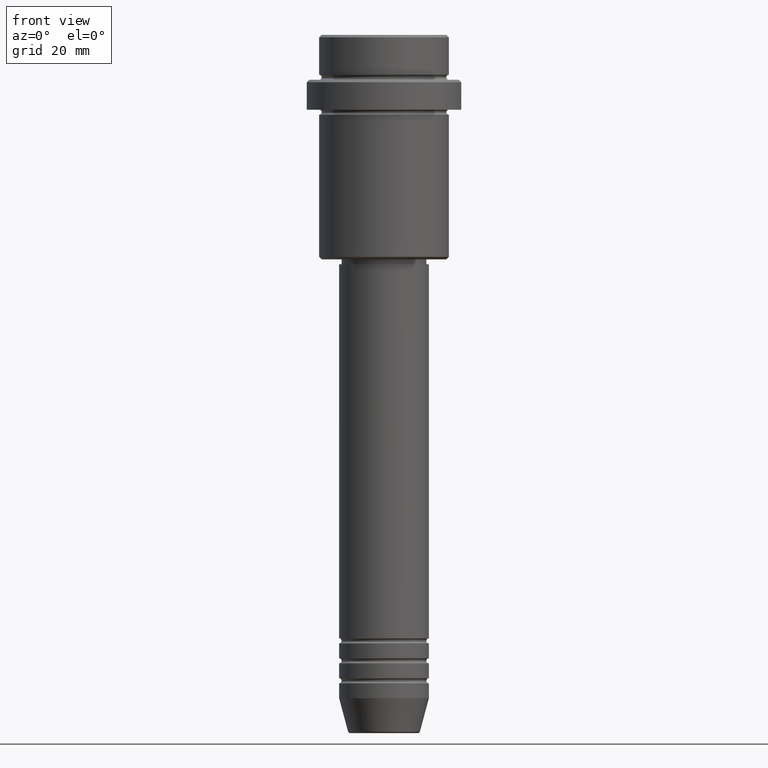
[diagram: clean part render]
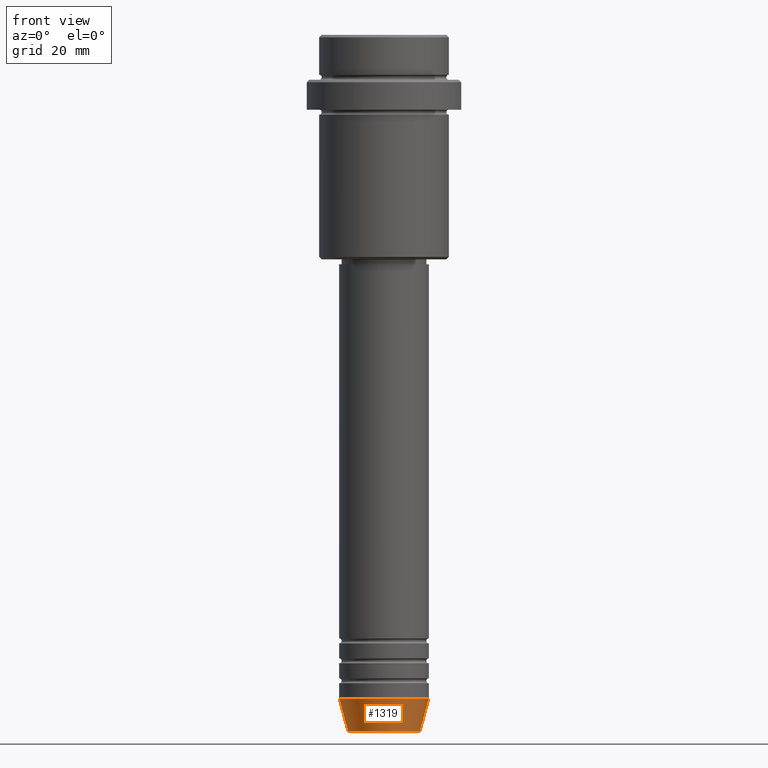
[diagram: same view with one face highlighted and labeled with its STEP entity id]
A machine part, front view. The second image highlights one B-rep face of the part: STEP entity #1319.
In plain terms, the highlighted conical surface has half-angle 15 deg.
Its self-contained STEP definition (entity closure, byte-faithful):
#10 = AXIS2_PLACEMENT_3D ( 'NONE', #1033, #397, #713 ) ;
#58 = VECTOR ( 'NONE', #1403, 1000.000000000000000 ) ;
#81 = LINE ( 'NONE', #1291, #58 ) ;
#181 = ORIENTED_EDGE ( 'NONE', *, *, #1157, .T. ) ;
#194 = CONICAL_SURFACE ( 'NONE', #526, 9.000000000000000000, 0.2617993877991500740 ) ;
#199 = VERTEX_POINT ( 'NONE', #238 ) ;
#238 = CARTESIAN_POINT ( 'NONE',  ( 9.000000000000000000, 0.000000000000000000, -133.0000000000000000 ) ) ;
#241 = EDGE_CURVE ( 'NONE', #288, #199, #1101, .T. ) ;
#266 = ORIENTED_EDGE ( 'NONE', *, *, #1134, .F. ) ;
#288 = VERTEX_POINT ( 'NONE', #586 ) ;
#313 = CARTESIAN_POINT ( 'NONE',  ( 0.000000000000000000, 0.000000000000000000, -139.6294095225512990 ) ) ;
#329 = CARTESIAN_POINT ( 'NONE',  ( 9.000000000000000000, 0.000000000000000000, -133.0000000000000000 ) ) ;
#345 = CARTESIAN_POINT ( 'NONE',  ( -9.000000000000000000, 1.102182119232617714E-15, -133.0000000000000000 ) ) ;
#357 = CARTESIAN_POINT ( 'NONE',  ( 0.000000000000000000, 0.000000000000000000, -133.0000000000000000 ) ) ;
#397 = DIRECTION ( 'NONE',  ( -0.000000000000000000, -0.000000000000000000, 1.000000000000000000 ) ) ;
#460 = DIRECTION ( 'NONE',  ( -0.000000000000000000, -0.000000000000000000, 1.000000000000000000 ) ) ;
#475 = FACE_OUTER_BOUND ( 'NONE', #504, .T. ) ;
#504 = EDGE_LOOP ( 'NONE', ( #266, #181, #1063, #1408 ) ) ;
#526 = AXIS2_PLACEMENT_3D ( 'NONE', #357, #460, #1092 ) ;
#586 = CARTESIAN_POINT ( 'NONE',  ( 7.223655072137188604, 0.000000000000000000, -139.6294095225512990 ) ) ;
#660 = DIRECTION ( 'NONE',  ( 1.000000000000000000, 0.000000000000000000, 0.000000000000000000 ) ) ;
#713 = DIRECTION ( 'NONE',  ( 1.000000000000000000, 0.000000000000000000, 0.000000000000000000 ) ) ;
#722 = AXIS2_PLACEMENT_3D ( 'NONE', #313, #968, #660 ) ;
#764 = VECTOR ( 'NONE', #886, 1000.000000000000000 ) ;
#845 = VERTEX_POINT ( 'NONE', #345 ) ;
#875 = CARTESIAN_POINT ( 'NONE',  ( -7.223655072137189492, 9.934123627281765110E-16, -139.6294095225512990 ) ) ;
#886 = DIRECTION ( 'NONE',  ( 0.2588190451025213501, 0.000000000000000000, 0.9659258262890680902 ) ) ;
#968 = DIRECTION ( 'NONE',  ( -0.000000000000000000, -0.000000000000000000, 1.000000000000000000 ) ) ;
#1033 = CARTESIAN_POINT ( 'NONE',  ( 0.000000000000000000, 0.000000000000000000, -133.0000000000000000 ) ) ;
#1052 = EDGE_CURVE ( 'NONE', #845, #199, #1222, .T. ) ;
#1063 = ORIENTED_EDGE ( 'NONE', *, *, #241, .T. ) ;
#1092 = DIRECTION ( 'NONE',  ( 1.000000000000000000, 0.000000000000000000, 0.000000000000000000 ) ) ;
#1101 = LINE ( 'NONE', #329, #764 ) ;
#1134 = EDGE_CURVE ( 'NONE', #1354, #845, #81, .T. ) ;
#1157 = EDGE_CURVE ( 'NONE', #1354, #288, #1379, .T. ) ;
#1222 = CIRCLE ( 'NONE', #10, 9.000000000000000000 ) ;
#1291 = CARTESIAN_POINT ( 'NONE',  ( -9.000000000000000000, 1.102182119232617714E-15, -133.0000000000000000 ) ) ;
#1319 = ADVANCED_FACE ( 'NONE', ( #475 ), #194, .T. ) ;
#1354 = VERTEX_POINT ( 'NONE', #875 ) ;
#1379 = CIRCLE ( 'NONE', #722, 7.223655072137188604 ) ;
#1403 = DIRECTION ( 'NONE',  ( -0.2588190451025213501, 3.169619151431772337E-17, 0.9659258262890680902 ) ) ;
#1408 = ORIENTED_EDGE ( 'NONE', *, *, #1052, .F. ) ;